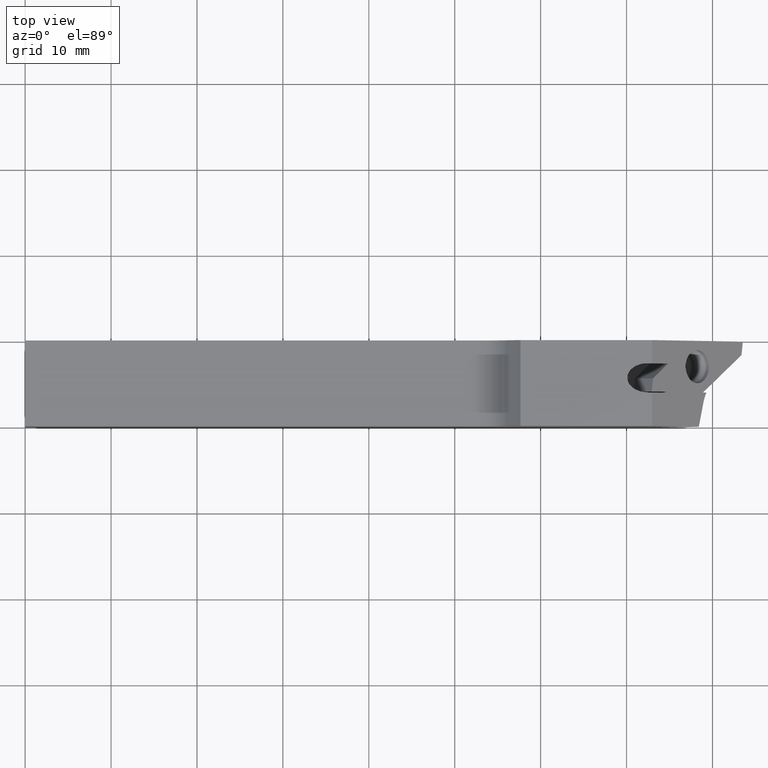
[diagram: clean part render]
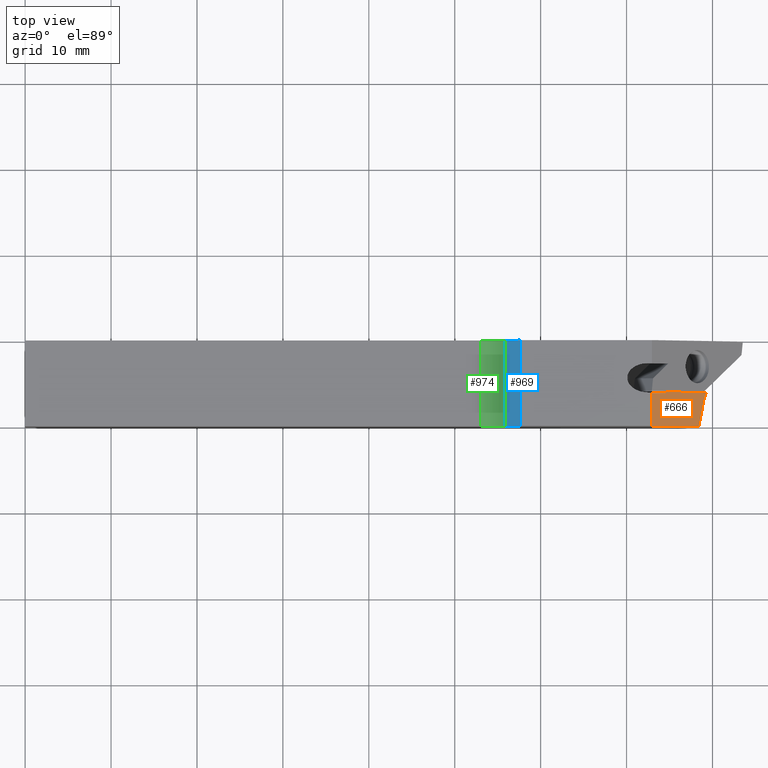
[diagram: same view with three faces highlighted in distinct colors, each labeled with its STEP entity id]
A machine part, top view with three faces highlighted in distinct colors.
Their STEP definitions:

[orange] entity #666 — the highlighted planar face has unit normal (0.7071, 0, 0.7071).
#2 = ORIENTED_EDGE ( 'NONE', *, *, #312, .F. ) ;
#29 = DIRECTION ( 'NONE',  ( -0.7071067811865487940, 0.000000000000000000, 0.7071067811865463515 ) ) ;
#46 = LINE ( 'NONE', #964, #1144 ) ;
#47 = DIRECTION ( 'NONE',  ( 0.1830127018922211857, 0.9659258262890675351, -0.1830127018922205751 ) ) ;
#58 = CIRCLE ( 'NONE', #185, 4.100000000000004086 ) ;
#102 = VECTOR ( 'NONE', #29, 1000.000000000000000 ) ;
#134 = CARTESIAN_POINT ( 'NONE',  ( 72.95000000000001705, 0.000000000000000000, 12.99999999999999112 ) ) ;
#185 = AXIS2_PLACEMENT_3D ( 'NONE', #932, #612, #840 ) ;
#188 = CARTESIAN_POINT ( 'NONE',  ( 72.95000000000001705, 3.900000000000012790, 12.99999999999998934 ) ) ;
#209 = ORIENTED_EDGE ( 'NONE', *, *, #641, .F. ) ;
#233 = VERTEX_POINT ( 'NONE', #454 ) ;
#307 = VERTEX_POINT ( 'NONE', #1159 ) ;
#312 = EDGE_CURVE ( 'NONE', #936, #233, #46, .T. ) ;
#320 = EDGE_CURVE ( 'NONE', #307, #936, #955, .T. ) ;
#322 = VECTOR ( 'NONE', #47, 1000.000000000000227 ) ;
#328 = FACE_OUTER_BOUND ( 'NONE', #776, .T. ) ;
#350 = PLANE ( 'NONE',  #1007 ) ;
#383 = ORIENTED_EDGE ( 'NONE', *, *, #1283, .T. ) ;
#396 = CARTESIAN_POINT ( 'NONE',  ( 74.62598846100196681, 4.000000000000005329, 11.32401153899804314 ) ) ;
#445 = CARTESIAN_POINT ( 'NONE',  ( 80.00000000000000000, 10.00000000000000000, 5.950000000000000178 ) ) ;
#451 = DIRECTION ( 'NONE',  ( 0.000000000000000000, -1.000000000000000000, 0.000000000000000000 ) ) ;
#454 = CARTESIAN_POINT ( 'NONE',  ( 79.30285857130192539, 4.000000000000005329, 6.647141428698108534 ) ) ;
#493 = CARTESIAN_POINT ( 'NONE',  ( 78.95790396676729017, 2.881239165103496536, 6.992096033232716223 ) ) ;
#495 = DIRECTION ( 'NONE',  ( 0.7071067811865463515, 0.000000000000000000, 0.7071067811865487940 ) ) ;
#542 = AXIS2_PLACEMENT_3D ( 'NONE', #1311, #495, #1021 ) ;
#547 = CARTESIAN_POINT ( 'NONE',  ( 80.00000000000000000, 0.000000000000000000, 5.950000000000000178 ) ) ;
#566 = DIRECTION ( 'NONE',  ( 0.7071067811865487940, 0.000000000000000000, -0.7071067811865463515 ) ) ;
#583 = EDGE_CURVE ( 'NONE', #770, #233, #58, .T. ) ;
#593 = ORIENTED_EDGE ( 'NONE', *, *, #928, .F. ) ;
#612 = DIRECTION ( 'NONE',  ( -0.7071067811865463515, 0.000000000000000000, -0.7071067811865487940 ) ) ;
#641 = EDGE_CURVE ( 'NONE', #1040, #1079, #879, .T. ) ;
#647 = LINE ( 'NONE', #1262, #322 ) ;
#662 = DIRECTION ( 'NONE',  ( 0.7071067811865463515, -0.000000000000000000, 0.7071067811865487940 ) ) ;
#666 = ADVANCED_FACE ( 'NONE', ( #328 ), #350, .T. ) ;
#770 = VERTEX_POINT ( 'NONE', #493 ) ;
#771 = CARTESIAN_POINT ( 'NONE',  ( 72.95000000000001705, 131.1583665669606660, 12.99999999999999112 ) ) ;
#776 = EDGE_LOOP ( 'NONE', ( #383, #1322, #2, #1070, #593, #1033, #209 ) ) ;
#840 = DIRECTION ( 'NONE',  ( 0.7071067811865491270, 8.990944845001735525E-16, -0.7071067811865459074 ) ) ;
#859 = DIRECTION ( 'NONE',  ( 0.7071067811865497932, 0.000000000000000000, -0.7071067811865452413 ) ) ;
#879 = LINE ( 'NONE', #547, #102 ) ;
#923 = CARTESIAN_POINT ( 'NONE',  ( 74.23869012638122911, 3.900000000000012790, 11.71130987361877018 ) ) ;
#928 = EDGE_CURVE ( 'NONE', #959, #307, #1140, .T. ) ;
#932 = CARTESIAN_POINT ( 'NONE',  ( 81.75825604452539608, 1.820081080183153732, 4.191743955474599659 ) ) ;
#936 = VERTEX_POINT ( 'NONE', #396 ) ;
#955 = CIRCLE ( 'NONE', #542, 1.550000000000002043 ) ;
#959 = VERTEX_POINT ( 'NONE', #188 ) ;
#964 = CARTESIAN_POINT ( 'NONE',  ( 74.62598846100196681, 4.000000000000005329, 11.32401153899804314 ) ) ;
#1007 = AXIS2_PLACEMENT_3D ( 'NONE', #445, #662, #566 ) ;
#1021 = DIRECTION ( 'NONE',  ( 0.7071067811865503483, 0.000000000000000000, -0.7071067811865447972 ) ) ;
#1033 = ORIENTED_EDGE ( 'NONE', *, *, #1069, .T. ) ;
#1040 = VERTEX_POINT ( 'NONE', #1056 ) ;
#1051 = DIRECTION ( 'NONE',  ( 0.7071067811865483499, -0.000000000000000000, -0.7071067811865467956 ) ) ;
#1056 = CARTESIAN_POINT ( 'NONE',  ( 78.41199935375051666, 9.901893260042758886E-17, 7.538000646249515491 ) ) ;
#1068 = VECTOR ( 'NONE', #1051, 1000.000000000000000 ) ;
#1069 = EDGE_CURVE ( 'NONE', #959, #1079, #1077, .T. ) ;
#1070 = ORIENTED_EDGE ( 'NONE', *, *, #320, .F. ) ;
#1077 = LINE ( 'NONE', #771, #1147 ) ;
#1079 = VERTEX_POINT ( 'NONE', #134 ) ;
#1140 = LINE ( 'NONE', #923, #1068 ) ;
#1144 = VECTOR ( 'NONE', #859, 1000.000000000000000 ) ;
#1147 = VECTOR ( 'NONE', #451, 1000.000000000000000 ) ;
#1159 = CARTESIAN_POINT ( 'NONE',  ( 74.23869012638122911, 3.900000000000012790, 11.71130987361877018 ) ) ;
#1262 = CARTESIAN_POINT ( 'NONE',  ( 80.28614217940251763, 9.891570031668019070, 5.663857820597484327 ) ) ;
#1283 = EDGE_CURVE ( 'NONE', #1040, #770, #647, .T. ) ;
#1311 = CARTESIAN_POINT ( 'NONE',  ( 74.23869012638122911, 5.450000000000010836, 11.71130987361877018 ) ) ;
#1322 = ORIENTED_EDGE ( 'NONE', *, *, #583, .T. ) ;

[blue] entity #969 — the highlighted planar face has unit normal (0.7071, 0, -0.7071).
#8 = DIRECTION ( 'NONE',  ( -0.7071067811865463515, 0.000000000000000000, -0.7071067811865487940 ) ) ;
#10 = DIRECTION ( 'NONE',  ( 0.000000000000000000, -1.000000000000000000, 0.000000000000000000 ) ) ;
#38 = CARTESIAN_POINT ( 'NONE',  ( 55.86045096767449536, 0.000000000000000000, 11.20086219713515696 ) ) ;
#41 = VERTEX_POINT ( 'NONE', #1003 ) ;
#50 = CARTESIAN_POINT ( 'NONE',  ( 55.86045096767449536, 10.00000000000000000, 11.20086219713515518 ) ) ;
#80 = LINE ( 'NONE', #940, #145 ) ;
#132 = LINE ( 'NONE', #38, #1029 ) ;
#145 = VECTOR ( 'NONE', #10, 1000.000000000000000 ) ;
#193 = EDGE_CURVE ( 'NONE', #404, #371, #80, .T. ) ;
#210 = CARTESIAN_POINT ( 'NONE',  ( 54.65958877053934373, 131.1583665669606660, 9.999999999999998224 ) ) ;
#308 = DIRECTION ( 'NONE',  ( 0.7071067811865487940, 0.000000000000000000, -0.7071067811865463515 ) ) ;
#330 = DIRECTION ( 'NONE',  ( 0.000000000000000000, -1.000000000000000000, 0.000000000000000000 ) ) ;
#355 = DIRECTION ( 'NONE',  ( -0.7071067811865463515, 0.000000000000000000, -0.7071067811865487940 ) ) ;
#371 = VERTEX_POINT ( 'NONE', #507 ) ;
#375 = ORIENTED_EDGE ( 'NONE', *, *, #707, .F. ) ;
#404 = VERTEX_POINT ( 'NONE', #1202 ) ;
#453 = LINE ( 'NONE', #461, #1296 ) ;
#461 = CARTESIAN_POINT ( 'NONE',  ( 53.02979438526965339, 10.00000000000000000, 8.370205614730304333 ) ) ;
#507 = CARTESIAN_POINT ( 'NONE',  ( 57.65958877053932241, 0.000000000000000000, 12.99999999999999112 ) ) ;
#669 = EDGE_CURVE ( 'NONE', #404, #852, #453, .T. ) ;
#676 = LINE ( 'NONE', #853, #1192 ) ;
#707 = EDGE_CURVE ( 'NONE', #371, #41, #676, .T. ) ;
#766 = DIRECTION ( 'NONE',  ( -0.7071067811865463515, 0.000000000000000000, -0.7071067811865487940 ) ) ;
#852 = VERTEX_POINT ( 'NONE', #50 ) ;
#853 = CARTESIAN_POINT ( 'NONE',  ( 53.02979438526965339, 0.000000000000000000, 8.370205614730304333 ) ) ;
#934 = AXIS2_PLACEMENT_3D ( 'NONE', #210, #308, #8 ) ;
#940 = CARTESIAN_POINT ( 'NONE',  ( 57.65958877053932241, 131.1583665669606660, 12.99999999999999112 ) ) ;
#969 = ADVANCED_FACE ( 'NONE', ( #1323 ), #1327, .F. ) ;
#975 = ORIENTED_EDGE ( 'NONE', *, *, #1298, .T. ) ;
#997 = ORIENTED_EDGE ( 'NONE', *, *, #669, .T. ) ;
#1003 = CARTESIAN_POINT ( 'NONE',  ( 55.86045096767449536, 0.000000000000000000, 11.20086219713515518 ) ) ;
#1029 = VECTOR ( 'NONE', #330, 1000.000000000000000 ) ;
#1152 = ORIENTED_EDGE ( 'NONE', *, *, #193, .F. ) ;
#1192 = VECTOR ( 'NONE', #766, 1000.000000000000000 ) ;
#1202 = CARTESIAN_POINT ( 'NONE',  ( 57.65958877053932241, 9.999999999999994671, 12.99999999999999112 ) ) ;
#1212 = EDGE_LOOP ( 'NONE', ( #997, #975, #375, #1152 ) ) ;
#1296 = VECTOR ( 'NONE', #355, 1000.000000000000000 ) ;
#1298 = EDGE_CURVE ( 'NONE', #852, #41, #132, .T. ) ;
#1323 = FACE_OUTER_BOUND ( 'NONE', #1212, .T. ) ;
#1327 = PLANE ( 'NONE',  #934 ) ;

[green] entity #974 — the highlighted cylindrical surface (edge-blend (fillet) strip) has radius 4.1 mm, axis along (0, 1, 0).
#4 = DIRECTION ( 'NONE',  ( 0.000000000000000000, 1.000000000000000000, 0.000000000000000000 ) ) ;
#26 = ORIENTED_EDGE ( 'NONE', *, *, #996, .F. ) ;
#28 = ORIENTED_EDGE ( 'NONE', *, *, #96, .F. ) ;
#38 = CARTESIAN_POINT ( 'NONE',  ( 55.86045096767449536, 0.000000000000000000, 11.20086219713515696 ) ) ;
#41 = VERTEX_POINT ( 'NONE', #1003 ) ;
#50 = CARTESIAN_POINT ( 'NONE',  ( 55.86045096767449536, 10.00000000000000000, 11.20086219713515518 ) ) ;
#84 = CYLINDRICAL_SURFACE ( 'NONE', #848, 4.099999999999999645 ) ;
#96 = EDGE_CURVE ( 'NONE', #1116, #281, #310, .T. ) ;
#98 = CARTESIAN_POINT ( 'NONE',  ( 52.96131316480964557, 0.000000000000000000, 9.999999999999998224 ) ) ;
#132 = LINE ( 'NONE', #38, #1029 ) ;
#135 = ORIENTED_EDGE ( 'NONE', *, *, #1298, .F. ) ;
#181 = CARTESIAN_POINT ( 'NONE',  ( 52.96131316480964557, 131.1583665669606660, 14.09999999999999787 ) ) ;
#220 = CARTESIAN_POINT ( 'NONE',  ( 52.96131316480964557, 9.999999999999994671, 14.09999999999999787 ) ) ;
#240 = DIRECTION ( 'NONE',  ( -0.000000000000000000, -1.000000000000000000, -0.000000000000000000 ) ) ;
#270 = VECTOR ( 'NONE', #539, 1000.000000000000000 ) ;
#273 = AXIS2_PLACEMENT_3D ( 'NONE', #220, #240, #1063 ) ;
#281 = VERTEX_POINT ( 'NONE', #578 ) ;
#310 = LINE ( 'NONE', #1052, #270 ) ;
#330 = DIRECTION ( 'NONE',  ( 0.000000000000000000, -1.000000000000000000, 0.000000000000000000 ) ) ;
#413 = DIRECTION ( 'NONE',  ( 0.000000000000000000, 0.000000000000000000, 1.000000000000000000 ) ) ;
#505 = DIRECTION ( 'NONE',  ( 0.000000000000000000, 1.000000000000000000, 0.000000000000000000 ) ) ;
#526 = CARTESIAN_POINT ( 'NONE',  ( 52.96131316480964557, 0.000000000000000000, 14.09999999999999787 ) ) ;
#539 = DIRECTION ( 'NONE',  ( -0.000000000000000000, 1.000000000000000000, -0.000000000000000000 ) ) ;
#578 = CARTESIAN_POINT ( 'NONE',  ( 52.96131316480964557, 10.00000000000000000, 9.999999999999998224 ) ) ;
#619 = EDGE_CURVE ( 'NONE', #41, #1116, #822, .T. ) ;
#661 = EDGE_LOOP ( 'NONE', ( #26, #28, #1200, #135 ) ) ;
#712 = FACE_OUTER_BOUND ( 'NONE', #661, .T. ) ;
#720 = DIRECTION ( 'NONE',  ( 0.000000000000000000, 0.000000000000000000, 1.000000000000000000 ) ) ;
#822 = CIRCLE ( 'NONE', #823, 4.099999999999999645 ) ;
#823 = AXIS2_PLACEMENT_3D ( 'NONE', #526, #4, #413 ) ;
#848 = AXIS2_PLACEMENT_3D ( 'NONE', #181, #505, #720 ) ;
#852 = VERTEX_POINT ( 'NONE', #50 ) ;
#892 = CIRCLE ( 'NONE', #273, 4.099999999999999645 ) ;
#974 = ADVANCED_FACE ( 'NONE', ( #712 ), #84, .F. ) ;
#996 = EDGE_CURVE ( 'NONE', #281, #852, #892, .T. ) ;
#1003 = CARTESIAN_POINT ( 'NONE',  ( 55.86045096767449536, 0.000000000000000000, 11.20086219713515518 ) ) ;
#1029 = VECTOR ( 'NONE', #330, 1000.000000000000000 ) ;
#1052 = CARTESIAN_POINT ( 'NONE',  ( 52.96131316480964557, 9.999999999999994671, 9.999999999999998224 ) ) ;
#1063 = DIRECTION ( 'NONE',  ( -1.692413147294446167E-15, 0.000000000000000000, 1.000000000000000000 ) ) ;
#1116 = VERTEX_POINT ( 'NONE', #98 ) ;
#1200 = ORIENTED_EDGE ( 'NONE', *, *, #619, .F. ) ;
#1298 = EDGE_CURVE ( 'NONE', #852, #41, #132, .T. ) ;